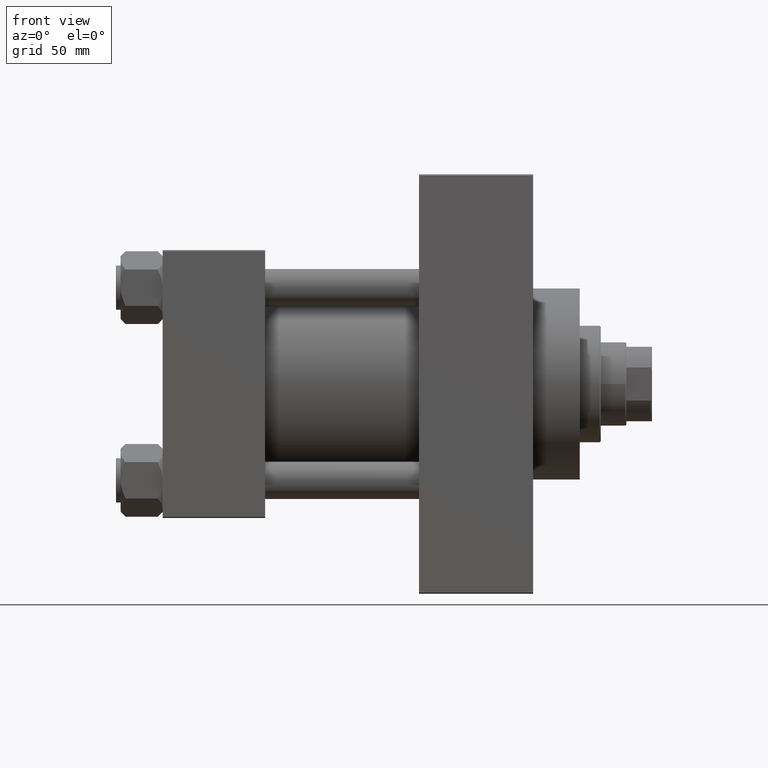
[diagram: clean part render]
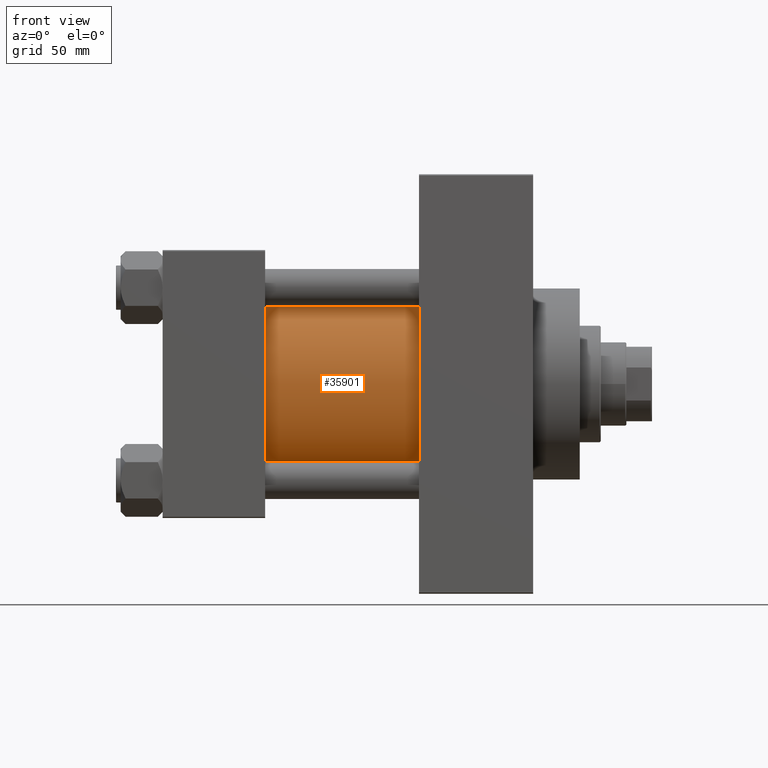
[diagram: same view with one face highlighted and labeled with its STEP entity id]
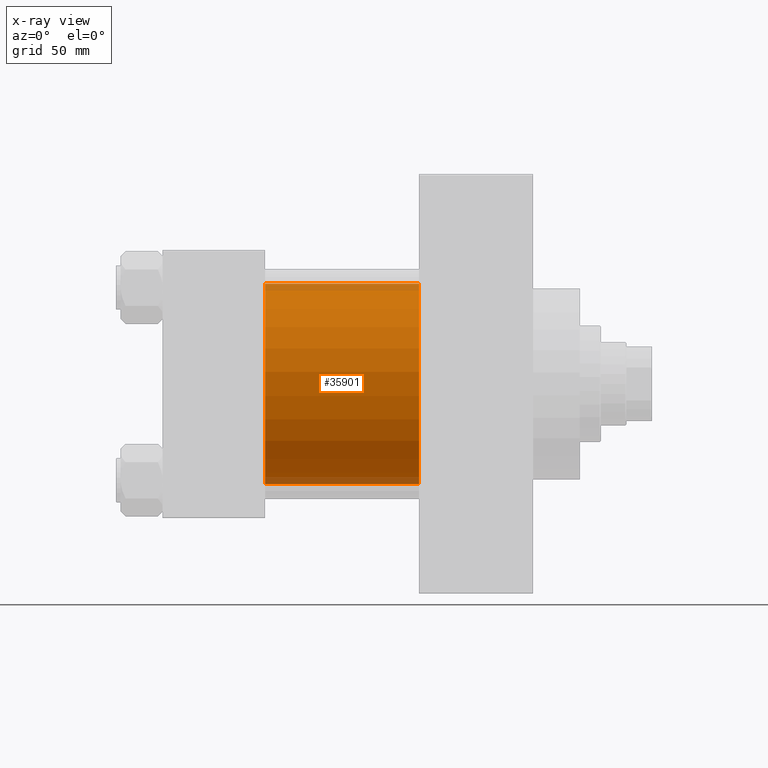
[diagram: x-ray of the same camera — body ghosted, the highlighted face saturated]
A machine part, front view. The second image highlights one B-rep face of the part: STEP entity #35901.
The next image is the same camera in x-ray: the body ghosted, the highlighted face saturated — about 7% of this face is hidden behind the body in this view.
In plain terms, the highlighted cylindrical surface (partial cylindrical patch) has radius 43 mm, axis along (-1, -0, -0).
Its self-contained STEP definition (entity closure, byte-faithful):
#226 = CARTESIAN_POINT ( 'NONE',  ( 110.0000000000000000, 2.663896022368408223E-15, -43.00000000000000000 ) ) ;
#957 = DIRECTION ( 'NONE',  ( -1.000000000000000000, -0.000000000000000000, -0.000000000000000000 ) ) ;
#1543 = ORIENTED_EDGE ( 'NONE', *, *, #17017, .F. ) ;
#3080 = DIRECTION ( 'NONE',  ( 1.000000000000000000, 0.000000000000000000, 0.000000000000000000 ) ) ;
#5365 = CYLINDRICAL_SURFACE ( 'NONE', #26754, 43.00000000000000000 ) ;
#6876 = ORIENTED_EDGE ( 'NONE', *, *, #25826, .T. ) ;
#7137 = VERTEX_POINT ( 'NONE', #17330 ) ;
#8428 = AXIS2_PLACEMENT_3D ( 'NONE', #11048, #3080, #39981 ) ;
#11048 = CARTESIAN_POINT ( 'NONE',  ( 110.0000000000000000, -2.602085213965210642E-15, 0.000000000000000000 ) ) ;
#13408 = VERTEX_POINT ( 'NONE', #226 ) ;
#13543 = VERTEX_POINT ( 'NONE', #35127 ) ;
#17017 = EDGE_CURVE ( 'NONE', #13408, #13543, #38791, .T. ) ;
#17330 = CARTESIAN_POINT ( 'NONE',  ( 44.00000000000000000, -2.602085213965210642E-15, 43.00000000000000000 ) ) ;
#20059 = DIRECTION ( 'NONE',  ( -1.000000000000000000, -0.000000000000000000, -0.000000000000000000 ) ) ;
#20772 = AXIS2_PLACEMENT_3D ( 'NONE', #35970, #32120, #22631 ) ;
#21778 = CARTESIAN_POINT ( 'NONE',  ( 110.0000000000000000, -2.602085213965210642E-15, 43.00000000000000000 ) ) ;
#22631 = DIRECTION ( 'NONE',  ( 0.000000000000000000, 0.000000000000000000, 1.000000000000000000 ) ) ;
#22888 = CARTESIAN_POINT ( 'NONE',  ( 110.0000000000000000, -2.602085213965210642E-15, 43.00000000000000000 ) ) ;
#22908 = VERTEX_POINT ( 'NONE', #21778 ) ;
#23505 = ORIENTED_EDGE ( 'NONE', *, *, #44796, .T. ) ;
#24429 = VECTOR ( 'NONE', #957, 1000.000000000000000 ) ;
#25826 = EDGE_CURVE ( 'NONE', #22908, #7137, #41475, .T. ) ;
#25999 = EDGE_CURVE ( 'NONE', #22908, #13408, #33083, .T. ) ;
#26754 = AXIS2_PLACEMENT_3D ( 'NONE', #37930, #20059, #38401 ) ;
#30740 = VECTOR ( 'NONE', #37612, 1000.000000000000000 ) ;
#32120 = DIRECTION ( 'NONE',  ( 1.000000000000000000, -0.000000000000000000, 0.000000000000000000 ) ) ;
#32956 = ORIENTED_EDGE ( 'NONE', *, *, #25999, .F. ) ;
#33083 = CIRCLE ( 'NONE', #8428, 43.00000000000000000 ) ;
#35127 = CARTESIAN_POINT ( 'NONE',  ( 44.00000000000000000, 2.663896022368408223E-15, -43.00000000000000000 ) ) ;
#35428 = CIRCLE ( 'NONE', #20772, 43.00000000000000000 ) ;
#35901 = ADVANCED_FACE ( 'NONE', ( #42256 ), #5365, .T. ) ;
#35970 = CARTESIAN_POINT ( 'NONE',  ( 44.00000000000000000, -2.602085213965210642E-15, 0.000000000000000000 ) ) ;
#36599 = EDGE_LOOP ( 'NONE', ( #1543, #32956, #6876, #23505 ) ) ;
#37612 = DIRECTION ( 'NONE',  ( -1.000000000000000000, -0.000000000000000000, -0.000000000000000000 ) ) ;
#37930 = CARTESIAN_POINT ( 'NONE',  ( 110.0000000000000000, -2.602085213965210642E-15, 0.000000000000000000 ) ) ;
#38401 = DIRECTION ( 'NONE',  ( 0.000000000000000000, 0.000000000000000000, 1.000000000000000000 ) ) ;
#38791 = LINE ( 'NONE', #41941, #24429 ) ;
#39981 = DIRECTION ( 'NONE',  ( 0.000000000000000000, 0.000000000000000000, -1.000000000000000000 ) ) ;
#41475 = LINE ( 'NONE', #22888, #30740 ) ;
#41941 = CARTESIAN_POINT ( 'NONE',  ( 110.0000000000000000, 2.663896022368408223E-15, -43.00000000000000000 ) ) ;
#42256 = FACE_OUTER_BOUND ( 'NONE', #36599, .T. ) ;
#44796 = EDGE_CURVE ( 'NONE', #7137, #13543, #35428, .T. ) ;